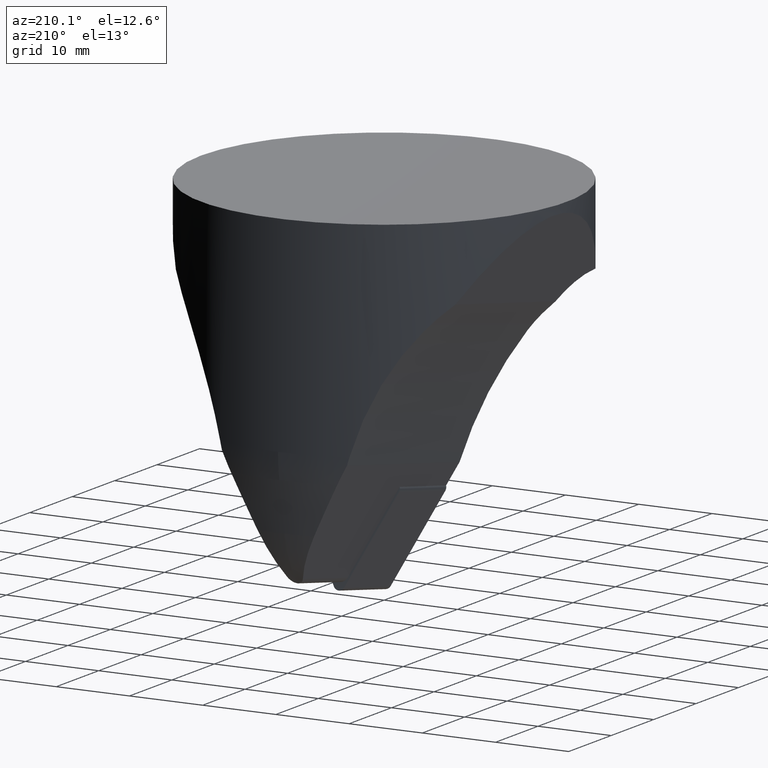
[diagram: clean part render]
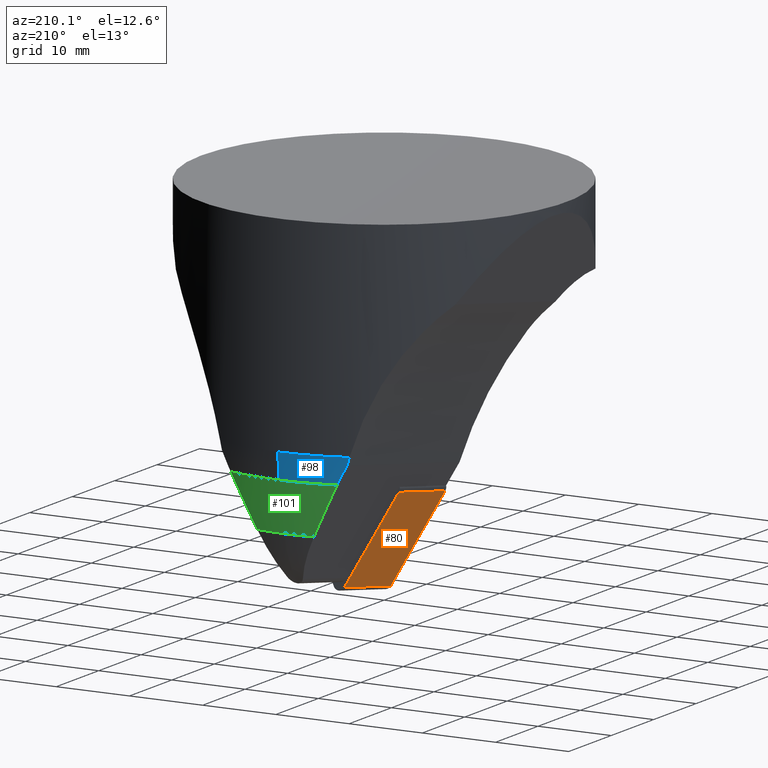
[diagram: same view with three faces highlighted in distinct colors, each labeled with its STEP entity id]
A machine part, auxiliary view with three faces highlighted in distinct colors.
Their STEP definitions:

[orange] entity #80 — the highlighted planar face has unit normal (-0.887, 0.0802, -0.4547).
#80=ADVANCED_FACE('',(#115),#116,.T.);
#115=FACE_OUTER_BOUND('',#174,.T.);
#116=PLANE('',#175);
#174=EDGE_LOOP('',(#262,#263,#264,#265));
#175=AXIS2_PLACEMENT_3D('',#266,#267,#268);
#262=ORIENTED_EDGE('',*,*,#482,.T.);
#263=ORIENTED_EDGE('',*,*,#466,.F.);
#264=ORIENTED_EDGE('',*,*,#474,.T.);
#265=ORIENTED_EDGE('',*,*,#481,.T.);
#266=CARTESIAN_POINT('',(-0.709705563675459,10.6232644207803,-47.3832497633299));
#267=DIRECTION('',(-0.887014444585653,0.0801806005415949,-0.454726782137576));
#268=DIRECTION('',(-0.45619557102919,0.0,0.889879542956996));
#466=EDGE_CURVE('',#544,#546,#547,.T.);
#474=EDGE_CURVE('',#544,#559,#561,.T.);
#481=EDGE_CURVE('',#559,#570,#572,.T.);
#482=EDGE_CURVE('',#570,#546,#573,.T.);
#544=VERTEX_POINT('',#673);
#546=VERTEX_POINT('',#675);
#547=LINE('',#676,#677);
#559=VERTEX_POINT('',#692);
#561=LINE('',#694,#695);
#570=VERTEX_POINT('',#708);
#572=LINE('',#710,#711);
#573=LINE('',#712,#713);
#673=CARTESIAN_POINT('',(-6.96658136130159,8.53608693445365,-35.5462780308101));
#675=CARTESIAN_POINT('',(-6.96658136130159,-2.40512720151199,-37.4755092846897));
#676=CARTESIAN_POINT('',(-6.96658136130159,8.53608693445365,-35.5462780308101));
#677=VECTOR('',#957,10.0);
#692=CARTESIAN_POINT('',(-0.709705563675459,10.6232644207803,-47.3832497633299));
#694=CARTESIAN_POINT('',(-6.96658136130159,8.53608693445365,-35.5462780308101));
#695=VECTOR('',#973,10.0);
#708=CARTESIAN_POINT('',(-0.709705563675459,-0.31794971518531,-49.3124810172095));
#710=CARTESIAN_POINT('',(-0.709705563675459,10.6232644207803,-47.3832497633299));
#711=VECTOR('',#984,10.0);
#712=CARTESIAN_POINT('',(-6.96658136130159,-2.40512720151198,-37.4755092846897));
#713=VECTOR('',#985,10.0);
#957=DIRECTION('',(-2.49825163056966E-017,-0.984807753012208,-0.173648177666931));
#973=DIRECTION('',(0.461741675719666,0.154028441866543,-0.873538702061769));
#984=DIRECTION('',(-2.49825163056966E-017,-0.984807753012208,-0.173648177666931));
#985=DIRECTION('',(-0.461741675719666,-0.154028441866543,0.873538702061769));

[blue] entity #98 — the highlighted toroidal blend (fillet) surface has major radius 5 mm and minor (blend) radius 20 mm.
#98=ADVANCED_FACE('',(#152),#153,.T.);
#152=FACE_OUTER_BOUND('',#211,.T.);
#153=TOROIDAL_SURFACE('',#212,4.99999999998796,20.0);
#211=EDGE_LOOP('',(#420,#421,#422,#423,#424));
#212=AXIS2_PLACEMENT_3D('',#425,#426,#427);
#420=ORIENTED_EDGE('',*,*,#532,.T.);
#421=ORIENTED_EDGE('',*,*,#538,.T.);
#422=ORIENTED_EDGE('',*,*,#513,.T.);
#423=ORIENTED_EDGE('',*,*,#535,.T.);
#424=ORIENTED_EDGE('',*,*,#523,.T.);
#425=CARTESIAN_POINT('',(-1.97896442789485E-012,1.18511866986637E-011,-28.2502267297702));
#426=DIRECTION('',(1.16276163018774E-011,-6.38232900043299E-011,1.0));
#427=DIRECTION('',(0.98380431698758,0.17924582526966,7.59174188747074E-016));
#513=EDGE_CURVE('',#625,#623,#626,.T.);
#523=EDGE_CURVE('',#643,#641,#644,.T.);
#532=EDGE_CURVE('',#641,#659,#660,.T.);
#535=EDGE_CURVE('',#623,#643,#663,.T.);
#538=EDGE_CURVE('',#659,#625,#666,.T.);
#623=VERTEX_POINT('',#852);
#625=VERTEX_POINT('',#855);
#626=CIRCLE('',#856,19.0805522116673);
#641=VERTEX_POINT('',#889);
#643=VERTEX_POINT('',#891);
#644=CIRCLE('',#892,25.0);
#659=VERTEX_POINT('',#939);
#660=CIRCLE('',#940,20.0);
#663=CIRCLE('',#943,15.4516804356779);
#666=CIRCLE('',#948,24.696155060248);
#852=CARTESIAN_POINT('',(-8.55146362872617,23.4652855198,-29.2513014164468));
#855=CARTESIAN_POINT('',(-7.27193831744663,23.6012497098578,-31.7231902827741));
#856=AXIS2_PLACEMENT_3D('',#1032,#1033,#1034);
#889=CARTESIAN_POINT('',(-3.79826201926659E-015,25.0,-28.2502267294459));
#891=CARTESIAN_POINT('',(-8.81714083515255,23.3935467061556,-28.2502267294459));
#892=AXIS2_PLACEMENT_3D('',#1057,#1058,#1059);
#939=CARTESIAN_POINT('',(-3.81686715591179E-015,24.696155060248,-31.7231902827742));
#940=AXIS2_PLACEMENT_3D('',#1073,#1074,#1075);
#943=AXIS2_PLACEMENT_3D('',#1082,#1083,#1084);
#948=AXIS2_PLACEMENT_3D('',#1087,#1088,#1089);
#1032=CARTESIAN_POINT('',(-8.8429423451295,4.58766587139678,-32.0113719355218));
#1033=DIRECTION('',(0.887010833178201,-0.0801818052288368,0.454733614256477));
#1034=DIRECTION('',(0.0823353543574192,0.996490228769934,0.0151034230849697));
#1057=CARTESIAN_POINT('',(-3.55271367880048E-015,-9.99200722162641E-016,-28.2502267294459));
#1058=DIRECTION('',(0.0,0.0,-1.0));
#1059=DIRECTION('',(1.0,0.0,0.0));
#1073=CARTESIAN_POINT('',(-3.24655197901369E-015,5.0,-28.2502267294459));
#1074=DIRECTION('',(-1.0,0.0,0.0));
#1075=DIRECTION('',(0.0,1.0,0.0));
#1082=CARTESIAN_POINT('',(-13.6260372989666,8.98785815426101,-31.0971690246883));
#1083=DIRECTION('',(0.912203986351149,-0.347434478786695,0.21719385404585));
#1084=DIRECTION('',(0.328415649764752,0.93694840673191,0.119460638338039));
#1087=CARTESIAN_POINT('',(1.75859327100625E-013,-9.99200722162641E-016,-31.7231902827742));
#1088=DIRECTION('',(0.0,0.0,1.0));
#1089=DIRECTION('',(1.0,0.0,0.0));

[green] entity #101 — the highlighted conical surface has half-angle 10 deg.
#101=ADVANCED_FACE('',(#158),#159,.T.);
#158=FACE_OUTER_BOUND('',#217,.T.);
#159=CONICAL_SURFACE('',#218,23.2367301929155,0.174532924999441);
#217=EDGE_LOOP('',(#444,#445,#446,#447,#448,#449));
#218=AXIS2_PLACEMENT_3D('',#450,#451,#452);
#444=ORIENTED_EDGE('',*,*,#501,.T.);
#445=ORIENTED_EDGE('',*,*,#518,.F.);
#446=ORIENTED_EDGE('',*,*,#509,.F.);
#447=ORIENTED_EDGE('',*,*,#514,.T.);
#448=ORIENTED_EDGE('',*,*,#538,.F.);
#449=ORIENTED_EDGE('',*,*,#534,.F.);
#450=CARTESIAN_POINT('',(-6.2172489379009E-015,-9.99200722162641E-016,-40.000000000001));
#451=DIRECTION('',(-0.0,-0.0,1.0));
#452=DIRECTION('',(1.0,0.0,0.0));
#501=EDGE_CURVE('',#604,#602,#605,.T.);
#509=EDGE_CURVE('',#616,#618,#619,.T.);
#514=EDGE_CURVE('',#616,#625,#627,.T.);
#518=EDGE_CURVE('',#618,#602,#633,.T.);
#534=EDGE_CURVE('',#604,#659,#662,.T.);
#538=EDGE_CURVE('',#659,#625,#666,.T.);
#602=VERTEX_POINT('',#753);
#604=VERTEX_POINT('',#770);
#605=ELLIPSE('',#771,53.5861056311116,22.8681854499295);
#616=VERTEX_POINT('',#829);
#618=VERTEX_POINT('',#846);
#619=CIRCLE('',#847,23.5133740915204);
#625=VERTEX_POINT('',#855);
#627=ELLIPSE('',#857,53.5861053999137,22.8681853512644);
#633=CIRCLE('',#864,23.5133740915204);
#659=VERTEX_POINT('',#939);
#662=CIRCLE('',#942,24.696155060248);
#666=CIRCLE('',#948,24.696155060248);
#753=CARTESIAN_POINT('',(3.87001466866381,23.1927089325959,-38.4310744873298));
#770=CARTESIAN_POINT('',(7.27193804052132,23.6012497951832,-31.7231902827742));
#771=AXIS2_PLACEMENT_3D('',#1015,#1016,#1017);
#829=CARTESIAN_POINT('',(-3.87001494199902,23.1927088869862,-38.4310744873298));
#846=CARTESIAN_POINT('',(4.10431417501712E-015,23.5133740915204,-38.4310744873298));
#847=AXIS2_PLACEMENT_3D('',#1024,#1025,#1026);
#855=CARTESIAN_POINT('',(-7.27193831744663,23.6012497098578,-31.7231902827741));
#857=AXIS2_PLACEMENT_3D('',#1035,#1036,#1037);
#864=AXIS2_PLACEMENT_3D('',#1045,#1046,#1047);
#939=CARTESIAN_POINT('',(-3.81686715591179E-015,24.696155060248,-31.7231902827742));
#942=AXIS2_PLACEMENT_3D('',#1079,#1080,#1081);
#948=AXIS2_PLACEMENT_3D('',#1087,#1088,#1089);
#1015=CARTESIAN_POINT('',(8.38107816085972,0.757611915844344,-33.5876331001034));
#1016=DIRECTION('',(-0.887010833178221,-0.0801818052284959,0.454733614256498));
#1017=DIRECTION('',(-0.452887029643987,-0.040938958401796,-0.89062749792785));
#1024=CARTESIAN_POINT('',(1.67865721323324E-013,-9.99200722162641E-016,-38.4310744873298));
#1025=DIRECTION('',(0.0,0.0,-1.0));
#1026=DIRECTION('',(1.0,0.0,0.0));
#1035=CARTESIAN_POINT('',(-8.38107812469913,0.757611912575604,-33.5876336963451));
#1036=DIRECTION('',(0.887010833178223,-0.0801818052284961,0.454733614256495));
#1037=DIRECTION('',(-0.452887029643984,0.0409389584017961,0.890627497927852));
#1045=CARTESIAN_POINT('',(1.67865721323324E-013,-9.99200722162641E-016,-38.4310744873298));
#1046=DIRECTION('',(0.0,0.0,-1.0));
#1047=DIRECTION('',(1.0,0.0,0.0));
#1079=CARTESIAN_POINT('',(1.75859327100625E-013,-9.99200722162641E-016,-31.7231902827742));
#1080=DIRECTION('',(0.0,0.0,1.0));
#1081=DIRECTION('',(1.0,0.0,0.0));
#1087=CARTESIAN_POINT('',(1.75859327100625E-013,-9.99200722162641E-016,-31.7231902827742));
#1088=DIRECTION('',(0.0,0.0,1.0));
#1089=DIRECTION('',(1.0,0.0,0.0));